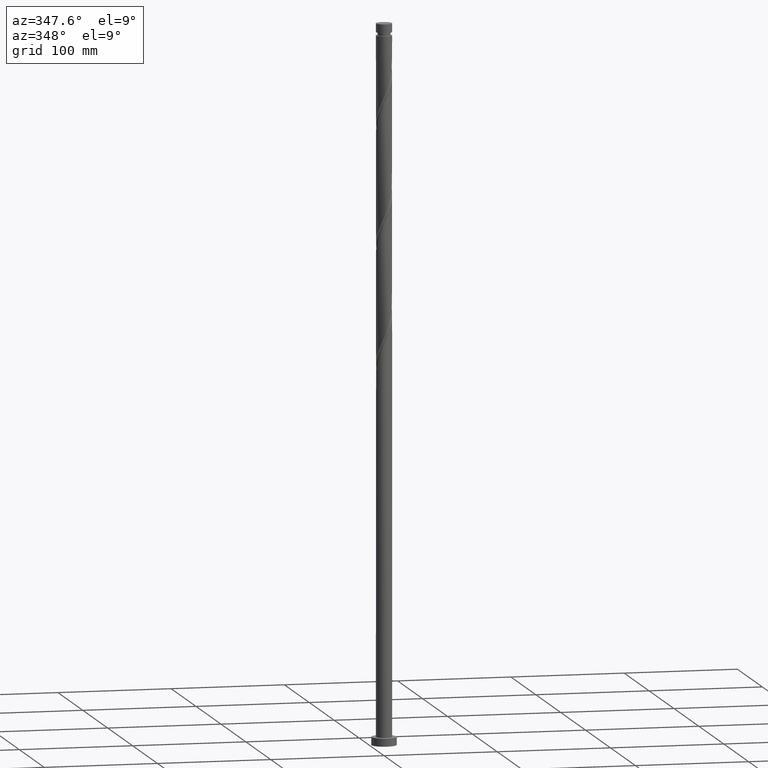
[diagram: clean part render]
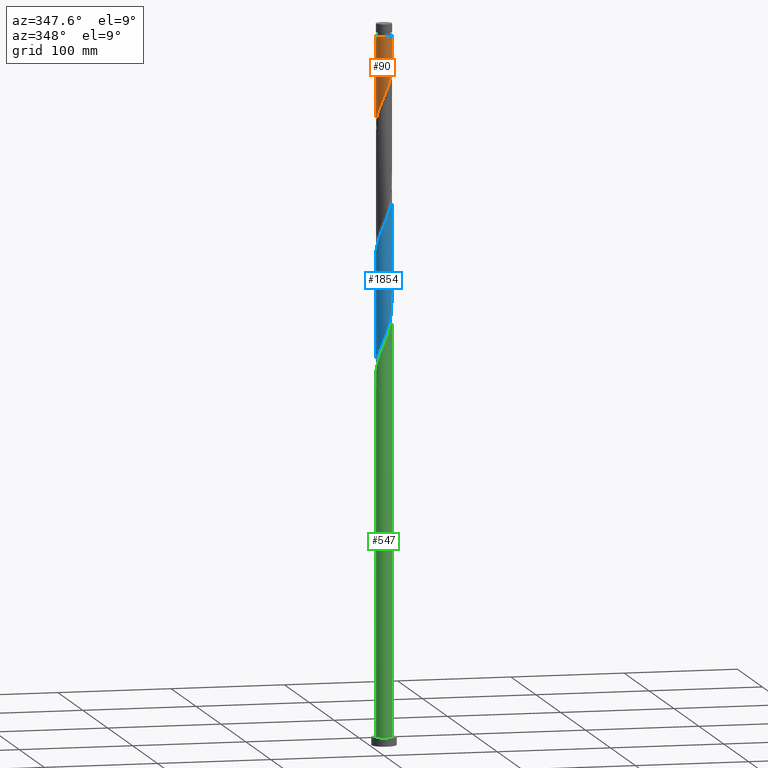
[diagram: same view with three faces highlighted in distinct colors, each labeled with its STEP entity id]
A machine part, auxiliary view with three faces highlighted in distinct colors.
Their STEP definitions:

[orange] entity #90 — the highlighted cylindrical surface (edge-blend (fillet) strip) has radius 7 mm, axis along (-0, -0, -1).
#40 = CARTESIAN_POINT ( 'NONE',  ( 5.918804784004594310, -3.793216437833842214, 587.0745855692368877 ) ) ;
#41 = CARTESIAN_POINT ( 'NONE',  ( -6.999999999999998224, -0.2691583152137814738, 544.7426706842259136 ) ) ;
#62 = CARTESIAN_POINT ( 'NONE',  ( 6.889388918561525799, -1.398950086389861180, 593.2510561574720214 ) ) ;
#76 = CARTESIAN_POINT ( 'NONE',  ( -6.761725868623631008, -1.810818399946826140, 548.4716443927661658 ) ) ;
#86 = CARTESIAN_POINT ( 'NONE',  ( -6.929522904244864279, -1.184252226071104142, 546.9275267457073824 ) ) ;
#90 = ADVANCED_FACE ( 'NONE', ( #497 ), #1543, .T. ) ;
#141 = VECTOR ( 'NONE', #578, 1000.000000000000000 ) ;
#224 = CARTESIAN_POINT ( 'NONE',  ( -3.230916837831618871, -6.243550064060083393, 562.3687032162956712 ) ) ;
#247 = DIRECTION ( 'NONE',  ( -1.000000000000000000, 0.000000000000000000, 0.000000000000000000 ) ) ;
#262 = CARTESIAN_POINT ( 'NONE',  ( 3.592125691453326830, -6.008047354740221557, 579.3539973339425160 ) ) ;
#272 =( BOUNDED_CURVE ( )  B_SPLINE_CURVE ( 2, ( #915, #1567, #1400, #62, #888, #1067, #1588, #40, #1424, #551, #2096, #579, #262, #902, #1578, #1252, #1930, #703, #415, #2058, #1214, #416, #2108, #224, #916, #1602, #1909, #718, #1941, #903, #764, #753, #76, #86, #1435, #41, #1401 ),
 .UNSPECIFIED., .F., .T. ) 
 B_SPLINE_CURVE_WITH_KNOTS ( ( 3, 2, 2, 2, 2, 2, 2, 2, 2, 2, 2, 2, 2, 2, 2, 2, 2, 2, 3 ),
 ( 0.3045293573162905498, 0.3088235294117647189, 0.3161764705882352811, 0.3235294117647058987, 0.3308823529411764608, 0.3382352941176470784, 0.3455882352941176405, 0.3529411764705882582, 0.3602941176470588203, 0.3676470588235294379, 0.3750000000000000000, 0.3823529411764705621, 0.3897058823529411797, 0.3970588235294117418, 0.4044117647058823595, 0.4117647058823529216, 0.4191176470588235392, 0.4264705882352941013, 0.4295293573162903833 ),
 .UNSPECIFIED. ) 
 CURVE ( )  GEOMETRIC_REPRESENTATION_ITEM ( )  RATIONAL_B_SPLINE_CURVE ( ( 0.9072066346053070385, 0.9068261157890741275, 0.9090909090909453649, 0.9052128875409765074, 0.9090909090909453649, 0.9052128875409765074, 0.9090909090909453649, 0.9052128875409765074, 0.9090909090909453649, 0.9052128875409765074, 0.9090909090909453649, 0.9052128875409765074, 0.9090909090909453649, 0.9052128875409765074, 0.9090909090909453649, 0.9052128875409765074, 0.9090909090909453649, 0.9052128875409765074, 0.9090909090909453649, 0.9052128875409765074, 0.9090909090909453649, 0.9052128875409765074, 0.9090909090909453649, 0.9052128875409765074, 0.9090909090909453649, 0.9052128875409765074, 0.9090909090909453649, 0.9052128875409765074, 0.9090909090909453649, 0.9052128875409765074, 0.9090909090909453649, 0.9052128875409765074, 0.9090909090909453649, 0.9052128875409765074, 0.9090909090909453649, 0.9074776808428478558, 0.9072066346053070385 ) ) 
 REPRESENTATION_ITEM ( '' )  );
#306 = EDGE_CURVE ( 'NONE', #624, #1216, #912, .T. ) ;
#362 = CARTESIAN_POINT ( 'NONE',  ( 7.000000000000000000, -2.181056541376478480E-15, 596.5992649321661929 ) ) ;
#393 = VECTOR ( 'NONE', #690, 1000.000000000000000 ) ;
#415 = CARTESIAN_POINT ( 'NONE',  ( -0.1087425470572652292, -6.999155310354205461, 570.0892914515897019 ) ) ;
#416 = CARTESIAN_POINT ( 'NONE',  ( -2.028655025169598058, -6.730921170557762956, 565.4569385104132380 ) ) ;
#497 = FACE_OUTER_BOUND ( 'NONE', #1862, .T. ) ;
#517 = EDGE_CURVE ( 'NONE', #1556, #1735, #272, .T. ) ;
#526 = DIRECTION ( 'NONE',  ( -1.000000000000000000, 0.000000000000000000, 0.000000000000000000 ) ) ;
#551 = CARTESIAN_POINT ( 'NONE',  ( 5.121024193531042989, -4.816207244780716046, 583.9863502751187525 ) ) ;
#578 = DIRECTION ( 'NONE',  ( -0.000000000000000000, -0.000000000000000000, -1.000000000000000000 ) ) ;
#579 = CARTESIAN_POINT ( 'NONE',  ( 4.148853266138337936, -5.675187890410482439, 580.8981149810015268 ) ) ;
#624 = VERTEX_POINT ( 'NONE', #838 ) ;
#690 = DIRECTION ( 'NONE',  ( -0.000000000000000000, -0.000000000000000000, -1.000000000000000000 ) ) ;
#703 = CARTESIAN_POINT ( 'NONE',  ( 0.5398247046144223349, -7.009231791266177680, 571.6334090986485990 ) ) ;
#718 = CARTESIAN_POINT ( 'NONE',  ( -5.268170654856889179, -4.654795265821393357, 556.1922326280600828 ) ) ;
#736 = CARTESIAN_POINT ( 'NONE',  ( -7.000000000000000000, 1.942036646431110937E-15, 544.0992649321663066 ) ) ;
#753 = CARTESIAN_POINT ( 'NONE',  ( -6.593928833002401291, -2.437384573822549250, 550.0157620398251765 ) ) ;
#762 = CARTESIAN_POINT ( 'NONE',  ( -6.999999999999936939, 0.000000000000000000, 619.5010561574721351 ) ) ;
#764 = CARTESIAN_POINT ( 'NONE',  ( -6.313857628450192827, -3.022449643527796326, 551.5598796868841873 ) ) ;
#838 = CARTESIAN_POINT ( 'NONE',  ( 6.999999999999936939, 8.572527594031433747E-16, 619.5010561574721351 ) ) ;
#888 = CARTESIAN_POINT ( 'NONE',  ( 6.702208247472142943, -2.020001140474032564, 591.7069385104132380 ) ) ;
#902 = CARTESIAN_POINT ( 'NONE',  ( 3.035398116768313059, -6.340906819069959788, 577.8098796868839599 ) ) ;
#903 = CARTESIAN_POINT ( 'NONE',  ( -6.033786423897983475, -3.607514713233048287, 553.1039973339425160 ) ) ;
#912 = CIRCLE ( 'NONE', #981, 6.999999999999936939 ) ;
#914 = LINE ( 'NONE', #1587, #141 ) ;
#915 = CARTESIAN_POINT ( 'NONE',  ( 7.000000000000000000, -2.181056541376478480E-15, 596.5992649321661929 ) ) ;
#916 = CARTESIAN_POINT ( 'NONE',  ( -3.777035245235265126, -5.893556206251924223, 560.8245855692367741 ) ) ;
#981 = AXIS2_PLACEMENT_3D ( 'NONE', #1755, #2107, #247 ) ;
#1037 = EDGE_CURVE ( 'NONE', #1216, #1735, #914, .T. ) ;
#1067 = CARTESIAN_POINT ( 'NONE',  ( 6.515027576382762753, -2.641052194558204391, 590.1628208633543409 ) ) ;
#1214 = CARTESIAN_POINT ( 'NONE',  ( -1.392982411949275079, -6.859999999999998543, 567.0010561574720214 ) ) ;
#1216 = VERTEX_POINT ( 'NONE', #762 ) ;
#1252 = CARTESIAN_POINT ( 'NONE',  ( 1.818576125090521467, -6.790693771085488883, 574.7216443927660521 ) ) ;
#1364 = EDGE_CURVE ( 'NONE', #624, #1556, #1370, .T. ) ;
#1370 = LINE ( 'NONE', #1499, #393 ) ;
#1373 = CARTESIAN_POINT ( 'NONE',  ( 0.000000000000000000, 0.000000000000000000, 630.0000000000000000 ) ) ;
#1400 = CARTESIAN_POINT ( 'NONE',  ( 6.959264651295728576, -0.7540792486375327286, 594.7951738045310321 ) ) ;
#1401 = CARTESIAN_POINT ( 'NONE',  ( -7.000000000000000000, 1.942036646431110937E-15, 544.0992649321663066 ) ) ;
#1424 = CARTESIAN_POINT ( 'NONE',  ( 5.519914488767819982, -4.304711841307275577, 585.5304679221781043 ) ) ;
#1435 = CARTESIAN_POINT ( 'NONE',  ( -6.979331644137396040, -0.5375219075929524859, 545.3834090986484853 ) ) ;
#1499 = CARTESIAN_POINT ( 'NONE',  ( 7.000000000000000000, 8.572527594031473190E-16, 630.0000000000000000 ) ) ;
#1543 = CYLINDRICAL_SURFACE ( 'NONE', #2076, 7.000000000000000000 ) ;
#1556 = VERTEX_POINT ( 'NONE', #362 ) ;
#1567 = CARTESIAN_POINT ( 'NONE',  ( 6.999999999999998224, -0.3781398857548631809, 595.6953457001534389 ) ) ;
#1578 = CARTESIAN_POINT ( 'NONE',  ( 2.426987120929418928, -6.565800295077723447, 576.2657620398251765 ) ) ;
#1587 = CARTESIAN_POINT ( 'NONE',  ( -7.000000000000000000, 0.000000000000000000, 630.0000000000000000 ) ) ;
#1588 = CARTESIAN_POINT ( 'NONE',  ( 6.216916180193677199, -3.217134316196025079, 588.6187032162955575 ) ) ;
#1602 = CARTESIAN_POINT ( 'NONE',  ( -4.323153652638914046, -5.543562348443765053, 559.2804679221779907 ) ) ;
#1605 = ORIENTED_EDGE ( 'NONE', *, *, #1364, .F. ) ;
#1735 = VERTEX_POINT ( 'NONE', #736 ) ;
#1755 = CARTESIAN_POINT ( 'NONE',  ( 0.000000000000000000, 0.000000000000000000, 619.5010561574721351 ) ) ;
#1862 = EDGE_LOOP ( 'NONE', ( #1605, #2061, #1943, #1865 ) ) ;
#1865 = ORIENTED_EDGE ( 'NONE', *, *, #517, .F. ) ;
#1909 = CARTESIAN_POINT ( 'NONE',  ( -4.795662153747900724, -5.099178807132579649, 557.7363502751190936 ) ) ;
#1930 = CARTESIAN_POINT ( 'NONE',  ( 1.179200414852473067, -6.899962781175832838, 573.1775267457072687 ) ) ;
#1941 = CARTESIAN_POINT ( 'NONE',  ( -5.650978539377438103, -4.131154989527219712, 554.6481149810015268 ) ) ;
#1943 = ORIENTED_EDGE ( 'NONE', *, *, #1037, .T. ) ;
#2046 = DIRECTION ( 'NONE',  ( -0.000000000000000000, -0.000000000000000000, -1.000000000000000000 ) ) ;
#2058 = CARTESIAN_POINT ( 'NONE',  ( -0.7573097987289498789, -6.989078829442237684, 568.5451738045309185 ) ) ;
#2061 = ORIENTED_EDGE ( 'NONE', *, *, #306, .T. ) ;
#2076 = AXIS2_PLACEMENT_3D ( 'NONE', #1373, #2046, #526 ) ;
#2096 = CARTESIAN_POINT ( 'NONE',  ( 4.634938729834689575, -5.245697567595597022, 582.4422326280603102 ) ) ;
#2107 = DIRECTION ( 'NONE',  ( -0.000000000000000000, -0.000000000000000000, -1.000000000000000000 ) ) ;
#2108 = CARTESIAN_POINT ( 'NONE',  ( -2.629785931500608243, -6.487235617308922286, 563.9128208633544546 ) ) ;

[blue] entity #1854 — the highlighted cylindrical surface (edge-blend (fillet) strip) has radius 7 mm, axis along (-0, -0, -1).
#24 = CARTESIAN_POINT ( 'NONE',  ( -3.777035245235265126, -5.893556206251924223, 350.8245855692367741 ) ) ;
#29 = VERTEX_POINT ( 'NONE', #864 ) ;
#37 = CARTESIAN_POINT ( 'NONE',  ( -6.999999999999998224, -0.2691583152137941304, 334.7426706842258000 ) ) ;
#51 = CARTESIAN_POINT ( 'NONE',  ( 7.000000000000012434, 5.796232452425122772E-15, 484.9028473827780772 ) ) ;
#70 = CARTESIAN_POINT ( 'NONE',  ( 6.959264651295728576, -0.7540792486375327286, 384.7951738045309185 ) ) ;
#98 = CARTESIAN_POINT ( 'NONE',  ( -3.035398116768320609, -6.340906819069966005, 451.1922326280601965 ) ) ;
#138 = CARTESIAN_POINT ( 'NONE',  ( -1.179200414852474399, -6.899962781175845272, 455.8245855692367741 ) ) ;
#205 = CARTESIAN_POINT ( 'NONE',  ( -5.268170654856889179, -4.654795265821393357, 346.1922326280603102 ) ) ;
#219 = CARTESIAN_POINT ( 'NONE',  ( 6.999999999999998224, -6.244394755447724730E-15, 386.5992649321661929 ) ) ;
#231 = CARTESIAN_POINT ( 'NONE',  ( 6.515027576382762753, -2.641052194558204391, 380.1628208633544546 ) ) ;
#289 = EDGE_CURVE ( 'NONE', #842, #1019, #1618, .T. ) ;
#321 = CARTESIAN_POINT ( 'NONE',  ( 3.230916837831620647, -6.243550064060092275, 466.6334090986484853 ) ) ;
#324 = CARTESIAN_POINT ( 'NONE',  ( -7.000000000000000000, 0.000000000000000000, 630.0000000000000000 ) ) ;
#345 = VERTEX_POINT ( 'NONE', #2085 ) ;
#347 = EDGE_CURVE ( 'NONE', #1019, #345, #729, .T. ) ;
#357 = ORIENTED_EDGE ( 'NONE', *, *, #1763, .F. ) ;
#372 = CARTESIAN_POINT ( 'NONE',  ( 6.999999999999999112, -0.3781398857548554648, 385.6953457001533820 ) ) ;
#382 = CYLINDRICAL_SURFACE ( 'NONE', #747, 7.000000000000000000 ) ;
#401 = CARTESIAN_POINT ( 'NONE',  ( -0.1087425470572652292, -6.999155310354205461, 360.0892914515897019 ) ) ;
#423 = CARTESIAN_POINT ( 'NONE',  ( -2.629785931500608243, -6.487235617308922286, 353.9128208633545114 ) ) ;
#426 = CARTESIAN_POINT ( 'NONE',  ( -7.000000000000009770, -5.348070149402561834E-15, 432.4028473827781340 ) ) ;
#434 = CARTESIAN_POINT ( 'NONE',  ( -4.634938729834700233, -5.245697567595605015, 446.5598796868839031 ) ) ;
#445 = CARTESIAN_POINT ( 'NONE',  ( 1.392982411949274413, -6.860000000000008313, 462.0010561574721351 ) ) ;
#463 = CARTESIAN_POINT ( 'NONE',  ( 0.7573097987289514332, -6.989078829442245677, 460.4569385104132948 ) ) ;
#473 = CARTESIAN_POINT ( 'NONE',  ( -6.216916180193686969, -3.217134316196027299, 440.3834090986485990 ) ) ;
#482 = CARTESIAN_POINT ( 'NONE',  ( 6.593928833002409284, -2.437384573822554579, 478.9863502751190936 ) ) ;
#535 = CARTESIAN_POINT ( 'NONE',  ( 6.702208247472142943, -2.020001140474032564, 381.7069385104132380 ) ) ;
#546 = CARTESIAN_POINT ( 'NONE',  ( -0.7573097987289498789, -6.989078829442237684, 358.5451738045309753 ) ) ;
#558 = DIRECTION ( 'NONE',  ( -0.000000000000000000, -0.000000000000000000, -1.000000000000000000 ) ) ;
#566 = ORIENTED_EDGE ( 'NONE', *, *, #1529, .T. ) ;
#586 = CARTESIAN_POINT ( 'NONE',  ( -6.929522904244864279, -1.184252226071104142, 336.9275267457074960 ) ) ;
#591 = VECTOR ( 'NONE', #1238, 1000.000000000000000 ) ;
#597 = CARTESIAN_POINT ( 'NONE',  ( -2.426987120929422481, -6.565800295077733217, 452.7363502751190936 ) ) ;
#618 = CARTESIAN_POINT ( 'NONE',  ( -4.148853266138343265, -5.675187890410490432, 448.1039973339426865 ) ) ;
#631 = CARTESIAN_POINT ( 'NONE',  ( -6.889388918561535569, -1.398950086389860070, 435.7510561574719077 ) ) ;
#650 = CARTESIAN_POINT ( 'NONE',  ( 6.313857628450200821, -3.022449643527803875, 477.4422326280603102 ) ) ;
#700 = CARTESIAN_POINT ( 'NONE',  ( 5.121024193531042989, -4.816207244780716046, 373.9863502751192073 ) ) ;
#714 = CARTESIAN_POINT ( 'NONE',  ( -6.313857628450192827, -3.022449643527796326, 341.5598796868839031 ) ) ;
#725 = CARTESIAN_POINT ( 'NONE',  ( 5.519914488767819982, -4.304711841307275577, 375.5304679221779907 ) ) ;
#729 = LINE ( 'NONE', #1732, #591 ) ;
#747 = AXIS2_PLACEMENT_3D ( 'NONE', #1739, #558, #760 ) ;
#750 = CARTESIAN_POINT ( 'NONE',  ( 3.592125691453326830, -6.008047354740221557, 369.3539973339427434 ) ) ;
#760 = DIRECTION ( 'NONE',  ( -1.000000000000000000, 0.000000000000000000, 0.000000000000000000 ) ) ;
#772 = CARTESIAN_POINT ( 'NONE',  ( 0.1087425470572626479, -6.999155310354217008, 458.9128208633545114 ) ) ;
#797 = CARTESIAN_POINT ( 'NONE',  ( -7.000000000000007105, -0.3781398857548738390, 433.3067666147907175 ) ) ;
#818 = CARTESIAN_POINT ( 'NONE',  ( 6.761725868623642555, -1.810818399946827695, 480.5304679221780475 ) ) ;
#820 = LINE ( 'NONE', #324, #1638 ) ;
#842 = VERTEX_POINT ( 'NONE', #426 ) ;
#864 = CARTESIAN_POINT ( 'NONE',  ( -7.000000000000000888, -3.310425544993339615E-14, 334.0992649321662498 ) ) ;
#873 = CARTESIAN_POINT ( 'NONE',  ( 1.179200414852473067, -6.899962781175832838, 363.1775267457074960 ) ) ;
#884 = CARTESIAN_POINT ( 'NONE',  ( -6.761725868623631008, -1.810818399946826140, 338.4716443927661658 ) ) ;
#897 = CARTESIAN_POINT ( 'NONE',  ( -2.028655025169598058, -6.730921170557762956, 355.4569385104132948 ) ) ;
#911 = CARTESIAN_POINT ( 'NONE',  ( -7.000000000000000888, -3.310425544993339615E-14, 334.0992649321662498 ) ) ;
#995 = CARTESIAN_POINT ( 'NONE',  ( 3.777035245235270011, -5.893556206251932217, 468.1775267457073824 ) ) ;
#1004 = DIRECTION ( 'NONE',  ( -0.000000000000000000, -0.000000000000000000, -1.000000000000000000 ) ) ;
#1019 = VERTEX_POINT ( 'NONE', #2095 ) ;
#1050 = CARTESIAN_POINT ( 'NONE',  ( 0.5398247046144223349, -7.009231791266177680, 361.6334090986485990 ) ) ;
#1063 = CARTESIAN_POINT ( 'NONE',  ( 6.216916180193677199, -3.217134316196025079, 378.6187032162956143 ) ) ;
#1077 = CARTESIAN_POINT ( 'NONE',  ( 4.148853266138337936, -5.675187890410482439, 370.8981149810015268 ) ) ;
#1090 = CARTESIAN_POINT ( 'NONE',  ( 7.000000000000010658, -0.2691583152137806412, 484.2594416307184133 ) ) ;
#1105 = ORIENTED_EDGE ( 'NONE', *, *, #347, .F. ) ;
#1122 = CARTESIAN_POINT ( 'NONE',  ( 2.629785931500609575, -6.487235617308932056, 465.0892914515896450 ) ) ;
#1161 = CARTESIAN_POINT ( 'NONE',  ( 5.268170654856895396, -4.654795265821402239, 472.8098796868837326 ) ) ;
#1221 = CARTESIAN_POINT ( 'NONE',  ( 2.426987120929418928, -6.565800295077723447, 366.2657620398250060 ) ) ;
#1238 = DIRECTION ( 'NONE',  ( -0.000000000000000000, -0.000000000000000000, -1.000000000000000000 ) ) ;
#1259 = CARTESIAN_POINT ( 'NONE',  ( 6.889388918561525799, -1.398950086389861180, 383.2510561574721919 ) ) ;
#1293 = CARTESIAN_POINT ( 'NONE',  ( -0.5398247046144254435, -7.009231791266187450, 457.3687032162956143 ) ) ;
#1304 = CARTESIAN_POINT ( 'NONE',  ( -6.702208247472152713, -2.020001140474033896, 437.2951738045308616 ) ) ;
#1318 = CARTESIAN_POINT ( 'NONE',  ( -7.000000000000008882, -5.348070149402561834E-15, 432.4028473827781340 ) ) ;
#1329 = CARTESIAN_POINT ( 'NONE',  ( 6.929522904244872272, -1.184252226071107250, 482.0745855692367172 ) ) ;
#1369 =( BOUNDED_CURVE ( )  B_SPLINE_CURVE ( 2, ( #219, #372, #70, #1259, #535, #231, #1063, #1891, #725, #700, #2081, #1077, #750, #1562, #1221, #1751, #873, #1050, #401, #546, #2055, #897, #423, #1927, #24, #1765, #1729, #205, #1409, #2104, #714, #1575, #884, #586, #1718, #37, #911 ),
 .UNSPECIFIED., .F., .T. ) 
 B_SPLINE_CURVE_WITH_KNOTS ( ( 3, 2, 2, 2, 2, 2, 2, 2, 2, 2, 2, 2, 2, 2, 2, 2, 2, 2, 3 ),
 ( 0.8045293573162904943, 0.8088235294117647189, 0.8161764705882352811, 0.8235294117647058432, 0.8308823529411765163, 0.8382352941176470784, 0.8455882352941176405, 0.8529411764705882026, 0.8602941176470588758, 0.8676470588235294379, 0.8750000000000000000, 0.8823529411764705621, 0.8897058823529411242, 0.8970588235294117974, 0.9044117647058823595, 0.9117647058823529216, 0.9191176470588234837, 0.9264705882352941568, 0.9295293573162902723 ),
 .UNSPECIFIED. ) 
 CURVE ( )  GEOMETRIC_REPRESENTATION_ITEM ( )  RATIONAL_B_SPLINE_CURVE ( ( 0.9072066346053069275, 0.9068261157890740165, 0.9090909090909453649, 0.9052128875409765074, 0.9090909090909453649, 0.9052128875409765074, 0.9090909090909453649, 0.9052128875409765074, 0.9090909090909453649, 0.9052128875409765074, 0.9090909090909453649, 0.9052128875409765074, 0.9090909090909453649, 0.9052128875409765074, 0.9090909090909453649, 0.9052128875409765074, 0.9090909090909453649, 0.9052128875409765074, 0.9090909090909453649, 0.9052128875409765074, 0.9090909090909453649, 0.9052128875409765074, 0.9090909090909453649, 0.9052128875409765074, 0.9090909090909453649, 0.9052128875409765074, 0.9090909090909453649, 0.9052128875409765074, 0.9090909090909453649, 0.9052128875409765074, 0.9090909090909453649, 0.9052128875409765074, 0.9090909090909453649, 0.9052128875409765074, 0.9090909090909453649, 0.9074776808428478558, 0.9072066346053069275 ) ) 
 REPRESENTATION_ITEM ( '' )  );
#1409 = CARTESIAN_POINT ( 'NONE',  ( -5.650978539377438103, -4.131154989527219712, 344.6481149810015836 ) ) ;
#1443 = CARTESIAN_POINT ( 'NONE',  ( 2.028655025169601167, -6.730921170557769173, 463.5451738045308616 ) ) ;
#1497 = CARTESIAN_POINT ( 'NONE',  ( 4.323153652638917599, -5.543562348443775711, 469.7216443927662226 ) ) ;
#1529 = EDGE_CURVE ( 'NONE', #842, #29, #820, .T. ) ;
#1562 = CARTESIAN_POINT ( 'NONE',  ( 3.035398116768313059, -6.340906819069959788, 367.8098796868840736 ) ) ;
#1575 = CARTESIAN_POINT ( 'NONE',  ( -6.593928833002401291, -2.437384573822549250, 340.0157620398251197 ) ) ;
#1618 =( BOUNDED_CURVE ( )  B_SPLINE_CURVE ( 2, ( #1318, #797, #2145, #631, #1304, #1949, #473, #2136, #2117, #1958, #434, #618, #1787, #98, #597, #1664, #138, #1293, #772, #463, #445, #1443, #1122, #321, #995, #1497, #1997, #1161, #1675, #2166, #650, #482, #818, #1329, #1838, #1090, #51 ),
 .UNSPECIFIED., .F., .T. ) 
 B_SPLINE_CURVE_WITH_KNOTS ( ( 3, 2, 2, 2, 2, 2, 2, 2, 2, 2, 2, 2, 2, 2, 2, 2, 2, 2, 3 ),
 ( 0.3045293573162907164, 0.3088235294117647189, 0.3161764705882352811, 0.3235294117647058432, 0.3308823529411765163, 0.3382352941176470784, 0.3455882352941176405, 0.3529411764705882026, 0.3602941176470588758, 0.3676470588235294379, 0.3750000000000000000, 0.3823529411764705621, 0.3897058823529411242, 0.3970588235294117974, 0.4044117647058823595, 0.4117647058823529216, 0.4191176470588234837, 0.4264705882352941568, 0.4295293573162904388 ),
 .UNSPECIFIED. ) 
 CURVE ( )  GEOMETRIC_REPRESENTATION_ITEM ( )  RATIONAL_B_SPLINE_CURVE ( ( 0.9072066346053131447, 0.9068261157890802338, 0.9090909090909514711, 0.9052128875409826136, 0.9090909090909514711, 0.9052128875409826136, 0.9090909090909514711, 0.9052128875409826136, 0.9090909090909514711, 0.9052128875409826136, 0.9090909090909514711, 0.9052128875409826136, 0.9090909090909514711, 0.9052128875409826136, 0.9090909090909514711, 0.9052128875409826136, 0.9090909090909514711, 0.9052128875409826136, 0.9090909090909514711, 0.9052128875409826136, 0.9090909090909514711, 0.9052128875409826136, 0.9090909090909514711, 0.9052128875409826136, 0.9090909090909514711, 0.9052128875409826136, 0.9090909090909514711, 0.9052128875409826136, 0.9090909090909514711, 0.9052128875409826136, 0.9090909090909514711, 0.9052128875409826136, 0.9090909090909514711, 0.9052128875409826136, 0.9090909090909514711, 0.9074776808428537400, 0.9072066346053129227 ) ) 
 REPRESENTATION_ITEM ( '' )  );
#1638 = VECTOR ( 'NONE', #1004, 1000.000000000000000 ) ;
#1664 = CARTESIAN_POINT ( 'NONE',  ( -1.818576125090525908, -6.790693771085499542, 454.2804679221778770 ) ) ;
#1675 = CARTESIAN_POINT ( 'NONE',  ( 5.650978539377443433, -4.131154989527226817, 474.3539973339426865 ) ) ;
#1689 = ORIENTED_EDGE ( 'NONE', *, *, #289, .F. ) ;
#1718 = CARTESIAN_POINT ( 'NONE',  ( -6.979331644137396040, -0.5375219075929524859, 335.3834090986484853 ) ) ;
#1729 = CARTESIAN_POINT ( 'NONE',  ( -4.795662153747900724, -5.099178807132579649, 347.7363502751192073 ) ) ;
#1732 = CARTESIAN_POINT ( 'NONE',  ( 7.000000000000000000, 8.572527594031473190E-16, 630.0000000000000000 ) ) ;
#1739 = CARTESIAN_POINT ( 'NONE',  ( 0.000000000000000000, 0.000000000000000000, 630.0000000000000000 ) ) ;
#1746 = EDGE_LOOP ( 'NONE', ( #1105, #1689, #566, #357 ) ) ;
#1751 = CARTESIAN_POINT ( 'NONE',  ( 1.818576125090521467, -6.790693771085488883, 364.7216443927663363 ) ) ;
#1763 = EDGE_CURVE ( 'NONE', #345, #29, #1369, .T. ) ;
#1765 = CARTESIAN_POINT ( 'NONE',  ( -4.323153652638914046, -5.543562348443765053, 349.2804679221779338 ) ) ;
#1787 = CARTESIAN_POINT ( 'NONE',  ( -3.592125691453332603, -6.008047354740226886, 449.6481149810015268 ) ) ;
#1838 = CARTESIAN_POINT ( 'NONE',  ( 6.979331644137407586, -0.5375219075929559276, 483.6187032162956712 ) ) ;
#1854 = ADVANCED_FACE ( 'NONE', ( #1903 ), #382, .T. ) ;
#1891 = CARTESIAN_POINT ( 'NONE',  ( 5.918804784004594310, -3.793216437833842214, 377.0745855692367172 ) ) ;
#1903 = FACE_OUTER_BOUND ( 'NONE', #1746, .T. ) ;
#1927 = CARTESIAN_POINT ( 'NONE',  ( -3.230916837831618871, -6.243550064060083393, 352.3687032162955575 ) ) ;
#1949 = CARTESIAN_POINT ( 'NONE',  ( -6.515027576382768970, -2.641052194558208832, 438.8392914515897019 ) ) ;
#1958 = CARTESIAN_POINT ( 'NONE',  ( -5.121024193531052759, -4.816207244780721375, 445.0157620398250629 ) ) ;
#1997 = CARTESIAN_POINT ( 'NONE',  ( 4.795662153747908718, -5.099178807132586755, 471.2657620398251197 ) ) ;
#2055 = CARTESIAN_POINT ( 'NONE',  ( -1.392982411949275079, -6.859999999999998543, 357.0010561574720782 ) ) ;
#2081 = CARTESIAN_POINT ( 'NONE',  ( 4.634938729834689575, -5.245697567595597022, 372.4422326280603102 ) ) ;
#2085 = CARTESIAN_POINT ( 'NONE',  ( 6.999999999999998224, -6.244394755447724730E-15, 386.5992649321661929 ) ) ;
#2095 = CARTESIAN_POINT ( 'NONE',  ( 7.000000000000011546, 5.796232452425122772E-15, 484.9028473827780772 ) ) ;
#2104 = CARTESIAN_POINT ( 'NONE',  ( -6.033786423897983475, -3.607514713233048287, 343.1039973339426865 ) ) ;
#2117 = CARTESIAN_POINT ( 'NONE',  ( -5.519914488767827976, -4.304711841307281794, 443.4716443927662226 ) ) ;
#2136 = CARTESIAN_POINT ( 'NONE',  ( -5.918804784004603192, -3.793216437833844878, 441.9275267457072687 ) ) ;
#2145 = CARTESIAN_POINT ( 'NONE',  ( -6.959264651295737458, -0.7540792486375293979, 434.2069385104131243 ) ) ;
#2166 = CARTESIAN_POINT ( 'NONE',  ( 6.033786423897992357, -3.607514713233052728, 475.8981149810014699 ) ) ;

[green] entity #547 — the highlighted cylindrical surface (edge-blend (fillet) strip) has radius 7 mm, axis along (-0, -0, -1).
#30 = CIRCLE ( 'NONE', #1065, 7.000000000000000000 ) ;
#118 = CARTESIAN_POINT ( 'NONE',  ( 2.629785931500609575, -6.487235617308932056, 360.0892914515897587 ) ) ;
#155 = EDGE_CURVE ( 'NONE', #857, #407, #206, .T. ) ;
#166 = CARTESIAN_POINT ( 'NONE',  ( 6.761725868623642555, -1.810818399946827695, 375.5304679221780475 ) ) ;
#167 = DIRECTION ( 'NONE',  ( 0.000000000000000000, 0.000000000000000000, 1.000000000000000000 ) ) ;
#177 = CARTESIAN_POINT ( 'NONE',  ( 5.268170654856895396, -4.654795265821402239, 367.8098796868837326 ) ) ;
#206 = LINE ( 'NONE', #1596, #1724 ) ;
#254 = AXIS2_PLACEMENT_3D ( 'NONE', #564, #1780, #388 ) ;
#265 = ORIENTED_EDGE ( 'NONE', *, *, #2083, .T. ) ;
#270 = CARTESIAN_POINT ( 'NONE',  ( -4.148853266138343265, -5.675187890410490432, 343.1039973339425728 ) ) ;
#281 = CARTESIAN_POINT ( 'NONE',  ( -7.000000000000007994, 1.425156123611743702E-14, 327.4028473827779635 ) ) ;
#291 = CARTESIAN_POINT ( 'NONE',  ( 0.1087425470572626479, -6.999155310354217008, 353.9128208633544546 ) ) ;
#313 = CARTESIAN_POINT ( 'NONE',  ( 4.795662153747908718, -5.099178807132586755, 366.2657620398249492 ) ) ;
#338 = CARTESIAN_POINT ( 'NONE',  ( 7.000000000000011546, 5.796232452425122772E-15, 379.9028473827780203 ) ) ;
#388 = DIRECTION ( 'NONE',  ( -1.000000000000000000, 0.000000000000000000, 0.000000000000000000 ) ) ;
#407 = VERTEX_POINT ( 'NONE', #589 ) ;
#433 = CARTESIAN_POINT ( 'NONE',  ( -5.918804784004603192, -3.793216437833844878, 336.9275267457073255 ) ) ;
#452 = CARTESIAN_POINT ( 'NONE',  ( -6.216916180193686969, -3.217134316196027299, 335.3834090986484853 ) ) ;
#511 = CARTESIAN_POINT ( 'NONE',  ( 5.650978539377443433, -4.131154989527226817, 369.3539973339425728 ) ) ;
#547 = ADVANCED_FACE ( 'NONE', ( #1568 ), #1101, .T. ) ;
#554 = EDGE_LOOP ( 'NONE', ( #2186, #1363, #265, #1874 ) ) ;
#564 = CARTESIAN_POINT ( 'NONE',  ( 0.000000000000000000, 0.000000000000000000, 630.0000000000000000 ) ) ;
#589 = CARTESIAN_POINT ( 'NONE',  ( 7.000000000000000000, 8.572527594031473190E-16, 7.000000000000000000 ) ) ;
#607 = CARTESIAN_POINT ( 'NONE',  ( -3.035398116768320609, -6.340906819069966005, 346.1922326280601965 ) ) ;
#620 = EDGE_CURVE ( 'NONE', #791, #407, #30, .T. ) ;
#630 = CARTESIAN_POINT ( 'NONE',  ( 3.230916837831620647, -6.243550064060092275, 361.6334090986484853 ) ) ;
#639 = CARTESIAN_POINT ( 'NONE',  ( 4.323153652638917599, -5.543562348443775711, 364.7216443927661658 ) ) ;
#640 = CARTESIAN_POINT ( 'NONE',  ( 0.000000000000000000, 0.000000000000000000, 7.000000000000000000 ) ) ;
#688 = DIRECTION ( 'NONE',  ( -0.000000000000000000, -0.000000000000000000, -1.000000000000000000 ) ) ;
#706 = VERTEX_POINT ( 'NONE', #1507 ) ;
#784 = CARTESIAN_POINT ( 'NONE',  ( -0.5398247046144254435, -7.009231791266187450, 352.3687032162955575 ) ) ;
#791 = VERTEX_POINT ( 'NONE', #1520 ) ;
#857 = VERTEX_POINT ( 'NONE', #1053 ) ;
#859 = CARTESIAN_POINT ( 'NONE',  ( 7.000000000000013323, -0.2691583152137463908, 379.2594416307183565 ) ) ;
#885 = DIRECTION ( 'NONE',  ( -0.000000000000000000, -0.000000000000000000, -1.000000000000000000 ) ) ;
#955 = CARTESIAN_POINT ( 'NONE',  ( -4.634938729834700233, -5.245697567595605015, 341.5598796868839031 ) ) ;
#1044 =( BOUNDED_CURVE ( )  B_SPLINE_CURVE ( 2, ( #281, #1774, #1786, #1270, #1473, #1303, #452, #433, #1655, #1097, #955, #270, #1130, #607, #1483, #1282, #1634, #784, #291, #1462, #2135, #1644, #118, #630, #2153, #639, #313, #177, #511, #1496, #1327, #1848, #166, #2164, #1188, #859, #338 ),
 .UNSPECIFIED., .F., .T. ) 
 B_SPLINE_CURVE_WITH_KNOTS ( ( 3, 2, 2, 2, 2, 2, 2, 2, 2, 2, 2, 2, 2, 2, 2, 2, 2, 2, 3 ),
 ( 0.05452935731629019595, 0.05882352941176471894, 0.06617647058823528106, 0.07352941176470584317, 0.08088235294117651630, 0.08823529411764707842, 0.09558823529411764053, 0.1029411764705882026, 0.1102941176470588758, 0.1176470588235294379, 0.1250000000000000000, 0.1323529411764705621, 0.1397058823529411242, 0.1470588235294117974, 0.1544117647058823595, 0.1617647058823529216, 0.1691176470588234837, 0.1764705882352941568, 0.1795293573162908274 ),
 .UNSPECIFIED. ) 
 CURVE ( )  GEOMETRIC_REPRESENTATION_ITEM ( )  RATIONAL_B_SPLINE_CURVE ( ( 0.9072066346053131447, 0.9068261157890800117, 0.9090909090909514711, 0.9052128875409826136, 0.9090909090909514711, 0.9052128875409826136, 0.9090909090909514711, 0.9052128875409826136, 0.9090909090909514711, 0.9052128875409826136, 0.9090909090909514711, 0.9052128875409826136, 0.9090909090909514711, 0.9052128875409826136, 0.9090909090909514711, 0.9052128875409826136, 0.9090909090909514711, 0.9052128875409826136, 0.9090909090909514711, 0.9052128875409826136, 0.9090909090909514711, 0.9052128875409826136, 0.9090909090909514711, 0.9052128875409826136, 0.9090909090909514711, 0.9052128875409826136, 0.9090909090909514711, 0.9052128875409826136, 0.9090909090909514711, 0.9052128875409826136, 0.9090909090909514711, 0.9052128875409826136, 0.9090909090909514711, 0.9052128875409826136, 0.9090909090909514711, 0.9074776808428537400, 0.9072066346053130337 ) ) 
 REPRESENTATION_ITEM ( '' )  );
#1053 = CARTESIAN_POINT ( 'NONE',  ( 7.000000000000011546, 5.796232452425122772E-15, 379.9028473827780772 ) ) ;
#1065 = AXIS2_PLACEMENT_3D ( 'NONE', #640, #167, #2018 ) ;
#1097 = CARTESIAN_POINT ( 'NONE',  ( -5.121024193531052759, -4.816207244780721375, 340.0157620398250060 ) ) ;
#1101 = CYLINDRICAL_SURFACE ( 'NONE', #254, 7.000000000000000000 ) ;
#1130 = CARTESIAN_POINT ( 'NONE',  ( -3.592125691453332603, -6.008047354740226886, 344.6481149810014699 ) ) ;
#1188 = CARTESIAN_POINT ( 'NONE',  ( 6.979331644137407586, -0.5375219075929559276, 378.6187032162956143 ) ) ;
#1270 = CARTESIAN_POINT ( 'NONE',  ( -6.889388918561535569, -1.398950086389860070, 330.7510561574720214 ) ) ;
#1282 = CARTESIAN_POINT ( 'NONE',  ( -1.818576125090525908, -6.790693771085499542, 349.2804679221779338 ) ) ;
#1303 = CARTESIAN_POINT ( 'NONE',  ( -6.515027576382768970, -2.641052194558208832, 333.8392914515896450 ) ) ;
#1327 = CARTESIAN_POINT ( 'NONE',  ( 6.313857628450200821, -3.022449643527803875, 372.4422326280603102 ) ) ;
#1363 = ORIENTED_EDGE ( 'NONE', *, *, #2051, .F. ) ;
#1462 = CARTESIAN_POINT ( 'NONE',  ( 0.7573097987289514332, -6.989078829442245677, 355.4569385104132380 ) ) ;
#1473 = CARTESIAN_POINT ( 'NONE',  ( -6.702208247472152713, -2.020001140474033896, 332.2951738045308616 ) ) ;
#1483 = CARTESIAN_POINT ( 'NONE',  ( -2.426987120929422481, -6.565800295077733217, 347.7363502751191504 ) ) ;
#1496 = CARTESIAN_POINT ( 'NONE',  ( 6.033786423897992357, -3.607514713233052728, 370.8981149810014699 ) ) ;
#1507 = CARTESIAN_POINT ( 'NONE',  ( -7.000000000000007994, 1.425156123611743702E-14, 327.4028473827779635 ) ) ;
#1520 = CARTESIAN_POINT ( 'NONE',  ( -7.000000000000000000, 0.000000000000000000, 7.000000000000000000 ) ) ;
#1526 = CARTESIAN_POINT ( 'NONE',  ( -7.000000000000000000, 0.000000000000000000, 630.0000000000000000 ) ) ;
#1568 = FACE_OUTER_BOUND ( 'NONE', #554, .T. ) ;
#1596 = CARTESIAN_POINT ( 'NONE',  ( 7.000000000000000000, 8.572527594031473190E-16, 630.0000000000000000 ) ) ;
#1634 = CARTESIAN_POINT ( 'NONE',  ( -1.179200414852474399, -6.899962781175845272, 350.8245855692367172 ) ) ;
#1644 = CARTESIAN_POINT ( 'NONE',  ( 2.028655025169601167, -6.730921170557769173, 358.5451738045308048 ) ) ;
#1655 = CARTESIAN_POINT ( 'NONE',  ( -5.519914488767827976, -4.304711841307281794, 338.4716443927661089 ) ) ;
#1702 = LINE ( 'NONE', #1526, #2159 ) ;
#1724 = VECTOR ( 'NONE', #885, 1000.000000000000000 ) ;
#1774 = CARTESIAN_POINT ( 'NONE',  ( -7.000000000000012434, -0.3781398857548280978, 328.3067666147907175 ) ) ;
#1780 = DIRECTION ( 'NONE',  ( -0.000000000000000000, -0.000000000000000000, -1.000000000000000000 ) ) ;
#1786 = CARTESIAN_POINT ( 'NONE',  ( -6.959264651295737458, -0.7540792486375293979, 329.2069385104133517 ) ) ;
#1848 = CARTESIAN_POINT ( 'NONE',  ( 6.593928833002409284, -2.437384573822554579, 373.9863502751190936 ) ) ;
#1874 = ORIENTED_EDGE ( 'NONE', *, *, #620, .T. ) ;
#2018 = DIRECTION ( 'NONE',  ( 1.000000000000000000, 0.000000000000000000, 0.000000000000000000 ) ) ;
#2051 = EDGE_CURVE ( 'NONE', #706, #857, #1044, .T. ) ;
#2083 = EDGE_CURVE ( 'NONE', #706, #791, #1702, .T. ) ;
#2135 = CARTESIAN_POINT ( 'NONE',  ( 1.392982411949274413, -6.860000000000008313, 357.0010561574721919 ) ) ;
#2153 = CARTESIAN_POINT ( 'NONE',  ( 3.777035245235270011, -5.893556206251932217, 363.1775267457074392 ) ) ;
#2159 = VECTOR ( 'NONE', #688, 1000.000000000000000 ) ;
#2164 = CARTESIAN_POINT ( 'NONE',  ( 6.929522904244872272, -1.184252226071107250, 377.0745855692366604 ) ) ;
#2186 = ORIENTED_EDGE ( 'NONE', *, *, #155, .F. ) ;